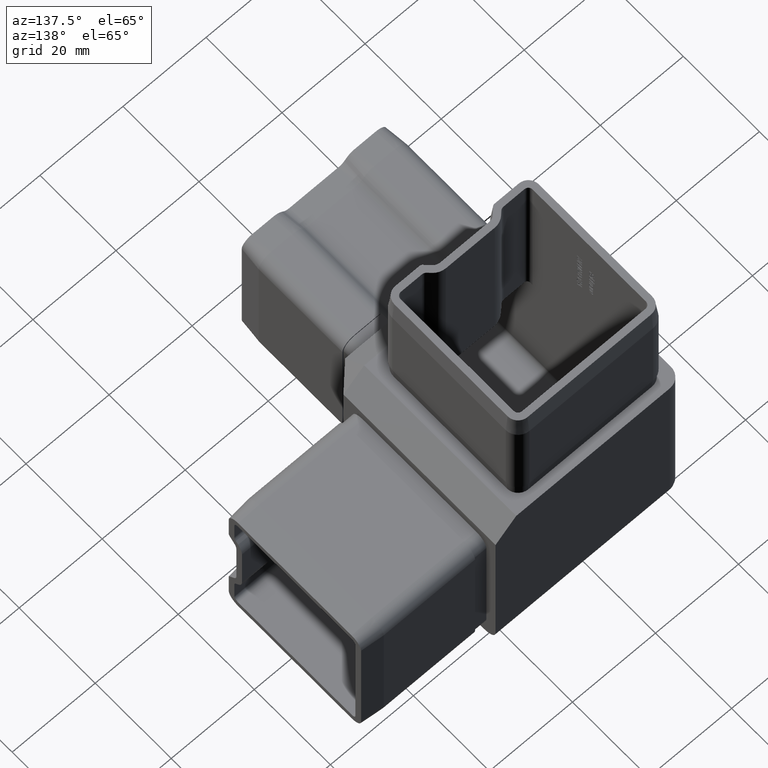
[diagram: clean part render]
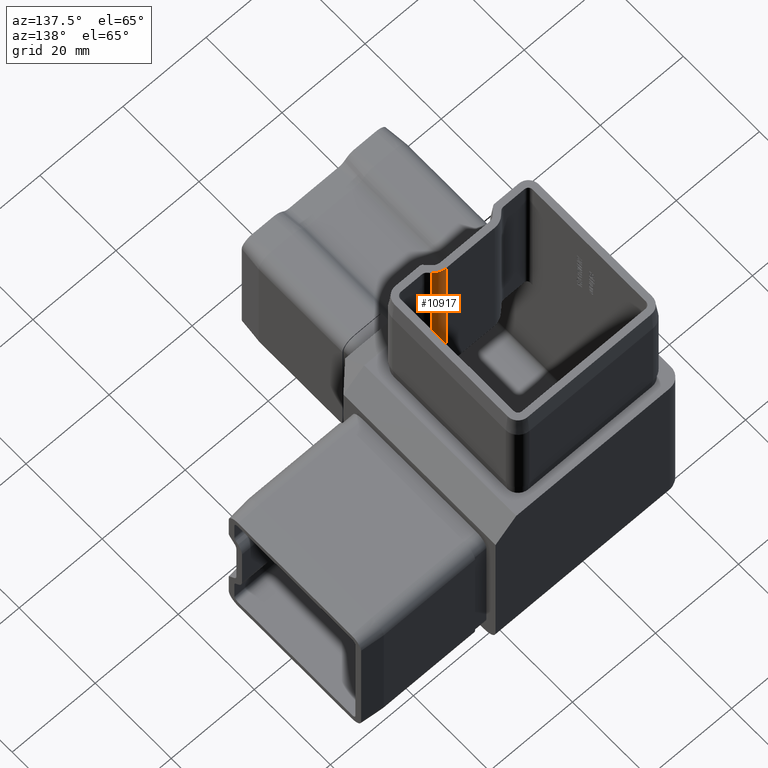
[diagram: same view with one face highlighted and labeled with its STEP entity id]
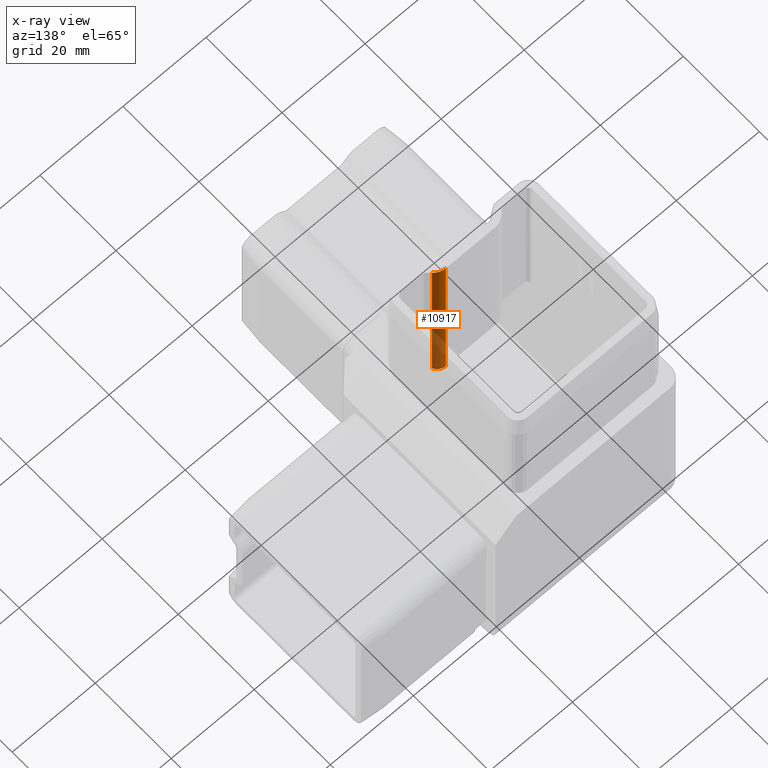
[diagram: x-ray of the same camera — body ghosted, the highlighted face saturated]
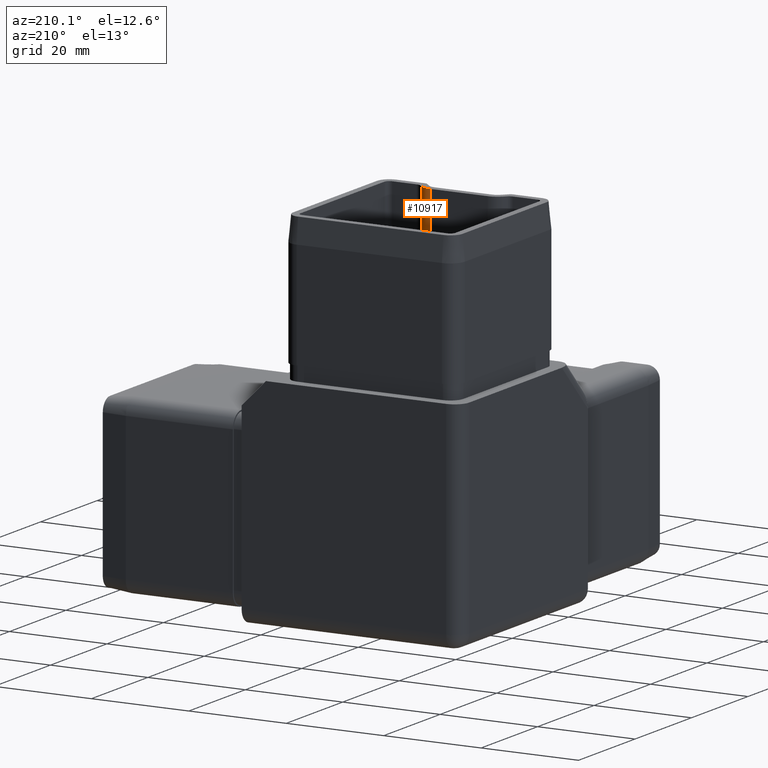
[diagram: same view with one face highlighted and labeled with its STEP entity id]
A machine part, auxiliary view. The second image highlights one B-rep face of the part: STEP entity #10917.
The next image is the same camera in x-ray: the body ghosted, the highlighted face saturated — about 32% of this face is hidden behind the body in this view.
A second angle (auxiliary view) of the same face is appended — the face is thin or edge-on in the first view.
In plain terms, the highlighted cylindrical surface (edge-blend (fillet) strip) has radius 3.5 mm, axis along (-0, -0, -1).
Its self-contained STEP definition (entity closure, byte-faithful):
#1812 = CYLINDRICAL_SURFACE ( 'NONE', #13756, 3.500000000000000400 ) ;
#1927 = CARTESIAN_POINT ( 'NONE',  ( 5.853553390593284600, -12.42512626584708700, 12.42512626584708900 ) ) ;
#1942 = VECTOR ( 'NONE', #15650, 1000.000000000000000 ) ;
#2056 = EDGE_CURVE ( 'NONE', #6250, #9642, #3744, .T. ) ;
#2118 = CIRCLE ( 'NONE', #18515, 3.500000000000000400 ) ;
#3060 = DIRECTION ( 'NONE',  ( -0.0000000000000000000, -0.0000000000000000000, -1.000000000000000000 ) ) ;
#3387 = CARTESIAN_POINT ( 'NONE',  ( 5.188403598331389000, -11.75997647358519200, 11.75997647358519600 ) ) ;
#3744 = LINE ( 'NONE', #4075, #1942 ) ;
#4075 = CARTESIAN_POINT ( 'NONE',  ( 5.853553390593282800, -12.42512626584708700, 52.50000000000000000 ) ) ;
#4539 = CARTESIAN_POINT ( 'NONE',  ( 3.378679656440366100, -11.40000000000000400, 52.50000000000000000 ) ) ;
#5027 = CARTESIAN_POINT ( 'NONE',  ( 3.378679656440366500, -11.40000000000000400, 11.40000000000000700 ) ) ;
#5642 = FACE_OUTER_BOUND ( 'NONE', #9868, .T. ) ;
#6142 = CARTESIAN_POINT ( 'NONE',  ( 3.378679656440366500, -14.90000000000000400, 52.50000000000000000 ) ) ;
#6189 = CARTESIAN_POINT ( 'NONE',  ( 3.378679656440366500, -14.90000000000000400, 52.50000000000000000 ) ) ;
#6250 = VERTEX_POINT ( 'NONE', #14764 ) ;
#6601 = VERTEX_POINT ( 'NONE', #8755 ) ;
#7930 = CARTESIAN_POINT ( 'NONE',  ( 4.319343513666783700, -11.40000000000000000, 11.40000000000000000 ) ) ;
#8021 = EDGE_CURVE ( 'NONE', #10444, #6250, #2118, .T. ) ;
#8467 = ORIENTED_EDGE ( 'NONE', *, *, #16982, .F. ) ;
#8755 = CARTESIAN_POINT ( 'NONE',  ( 3.378679656440366500, -11.40000000000000400, 11.40000000000000700 ) ) ;
#8906 = DIRECTION ( 'NONE',  ( 1.000000000000000000, 0.0000000000000000000, 0.0000000000000000000 ) ) ;
#9297 = VECTOR ( 'NONE', #16527, 1000.000000000000000 ) ;
#9642 = VERTEX_POINT ( 'NONE', #1927 ) ;
#9868 = EDGE_LOOP ( 'NONE', ( #17620, #16979, #8467, #18545 ) ) ;
#10404 = DIRECTION ( 'NONE',  ( -0.0000000000000000000, -0.0000000000000000000, -1.000000000000000000 ) ) ;
#10427 = DIRECTION ( 'NONE',  ( -1.000000000000000000, 0.0000000000000000000, 0.0000000000000000000 ) ) ;
#10444 = VERTEX_POINT ( 'NONE', #4539 ) ;
#10846 = CARTESIAN_POINT ( 'NONE',  ( 3.378679656440366100, -11.40000000000000400, 52.50000000000000000 ) ) ;
#10917 = ADVANCED_FACE ( 'NONE', ( #5642 ), #1812, .T. ) ;
#11433 = EDGE_CURVE ( 'NONE', #6601, #9642, #15620, .T. ) ;
#13756 = AXIS2_PLACEMENT_3D ( 'NONE', #6142, #3060, #10427 ) ;
#14047 = LINE ( 'NONE', #10846, #9297 ) ;
#14764 = CARTESIAN_POINT ( 'NONE',  ( 5.853553390593282800, -12.42512626584708700, 52.50000000000000000 ) ) ;
#15020 = CARTESIAN_POINT ( 'NONE',  ( 5.853553390593284600, -12.42512626584708700, 12.42512626584708900 ) ) ;
#15620 =( BOUNDED_CURVE ( )  B_SPLINE_CURVE ( 3, ( #5027, #7930, #3387, #15020 ),
 .UNSPECIFIED., .F., .T. ) 
 B_SPLINE_CURVE_WITH_KNOTS ( ( 4, 4 ),
 ( 3.141592653589793100, 3.926990816987241800 ),
 .UNSPECIFIED. ) 
 CURVE ( )  GEOMETRIC_REPRESENTATION_ITEM ( )  RATIONAL_B_SPLINE_CURVE ( ( 1.000000000000000000, 0.9492530216741910100, 0.9492530216741910100, 1.000000000000000000 ) ) 
 REPRESENTATION_ITEM ( '' )  );
#15650 = DIRECTION ( 'NONE',  ( -0.0000000000000000000, -0.0000000000000000000, -1.000000000000000000 ) ) ;
#16527 = DIRECTION ( 'NONE',  ( -0.0000000000000000000, -0.0000000000000000000, -1.000000000000000000 ) ) ;
#16979 = ORIENTED_EDGE ( 'NONE', *, *, #11433, .F. ) ;
#16982 = EDGE_CURVE ( 'NONE', #10444, #6601, #14047, .T. ) ;
#17620 = ORIENTED_EDGE ( 'NONE', *, *, #2056, .T. ) ;
#18515 = AXIS2_PLACEMENT_3D ( 'NONE', #6189, #10404, #8906 ) ;
#18545 = ORIENTED_EDGE ( 'NONE', *, *, #8021, .T. ) ;